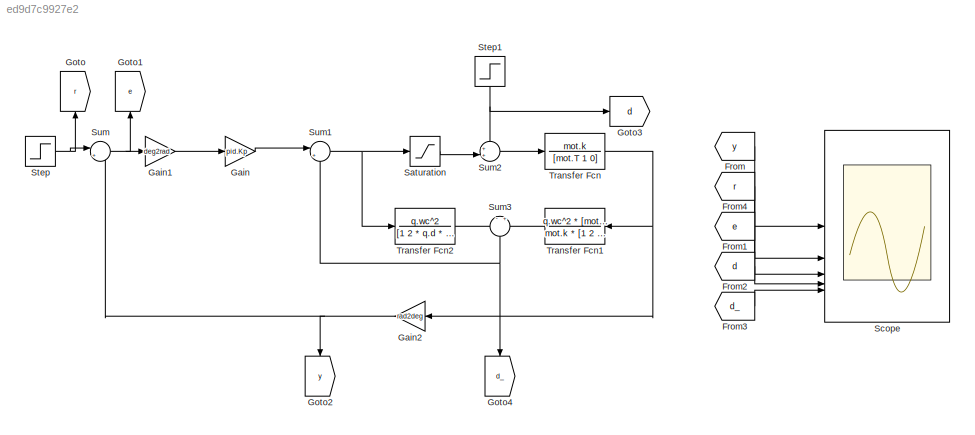
MODEL slx_ed9d7c9927e2
KIND model
CONFIG AbsTol = auto
CONFIG EnableMultiTasking = off
CONFIG FixedStep = auto
CONFIG MaxStep = 0.001
CONFIG MinStep = auto
CONFIG RelTol = 1e-3
CONFIG SampleTimeConstraint = Unconstrained
CONFIG SolverName = ode45
CONFIG StartTime = 0.0
CONFIG StopTime = 6
BLOCK [From] From
  GotoTag = y
BLOCK [From] From1
  GotoTag = e
BLOCK [From] From2
  GotoTag = d
BLOCK [From] From3
  GotoTag = d_
BLOCK [From] From4
  GotoTag = r
BLOCK [Gain] Gain
  Gain = pid.Kp
BLOCK [Gain] Gain1
  Gain = deg2rad
BLOCK [Gain] Gain2
  Gain = rad2deg
BLOCK [Goto] Goto
  GotoTag = r
  NameLocation = right
BLOCK [Goto] Goto1
  GotoTag = e
  NameLocation = right
BLOCK [Goto] Goto2
  GotoTag = y
  NameLocation = left
BLOCK [Goto] Goto3
  GotoTag = d
BLOCK [Goto] Goto4
  GotoTag = d_
  NameLocation = left
BLOCK [Saturate] Saturation
  LowerLimit = -umax
  UpperLimit = umax
BLOCK [Scope] Scope
  Floating = off
  NumInputPorts = 5
  ScopeSpecificationString = Simulink.scopes.TimeScopeBlockCfg('CurrentConfiguration', extmgr.ConfigurationSet(extmgr.Configuration('Core','General UI',true),extmgr.Configuration('Core','Source UI',true),extmgr.Configuration('Sources','WiredSimulink',true,'DataLogging',true,'DataLoggingVariableName','sim1_res','DataLoggingSaveFormat','StructureWithTime'),extmgr.Configuration('Visuals','Time Domain',true,'SerializedDisplays',{...<+4767ch>
BLOCK [Step] Step
  After = r.A
  SampleTime = 0
  Time = r.t
BLOCK [Step] Step1
  After = d.A
  NameLocation = left
  SampleTime = 0
  Time = d.t
BLOCK [Sum] Sum
  Inputs = |+-
BLOCK [Sum] Sum1
  Inputs = |+-
BLOCK [Sum] Sum2
  Inputs = ++|
BLOCK [Sum] Sum3
  Inputs = -|+
  NameLocation = left
BLOCK [TransferFcn] Transfer Fcn
  Denominator = [mot.T 1 0]
  Numerator = mot.k
BLOCK [TransferFcn] Transfer Fcn1
  Denominator = mot.k * [1 2 * q.d * q.wc q.wc^2]
  Numerator = q.wc^2 * [mot.T 1 0]
BLOCK [TransferFcn] Transfer Fcn2
  Denominator = [1 2 * q.d * q.wc q.wc^2]
  Numerator = q.wc^2
LINE From1:1 -> Scope:3
LINE From2:1 -> Scope:4
LINE From3:1 -> Scope:5
LINE From4:1 -> Scope:2
LINE From:1 -> Scope:1
LINE Gain1:1 -> Gain:1
NET Gain2:1 -> Goto2:1, Sum:2
LINE Gain:1 -> Sum1:1
LINE Saturation:1 -> Sum2:2
NET Step1:1 -> Goto3:1, Sum2:1
NET Step:1 -> Goto:1, Sum:1
NET Sum1:1 -> Saturation:1, Transfer Fcn2:1
LINE Sum2:1 -> Transfer Fcn:1
NET Sum3:1 -> Goto4:1, Sum1:2
NET Sum:1 -> Gain1:1, Goto1:1
LINE Transfer Fcn1:1 -> Sum3:2
LINE Transfer Fcn2:1 -> Sum3:1
NET Transfer Fcn:1 -> Gain2:1, Transfer Fcn1:1
note: NET lines group one-source signal fan-out (src -> all destinations, sorted); 1:1 wires keep LINE
